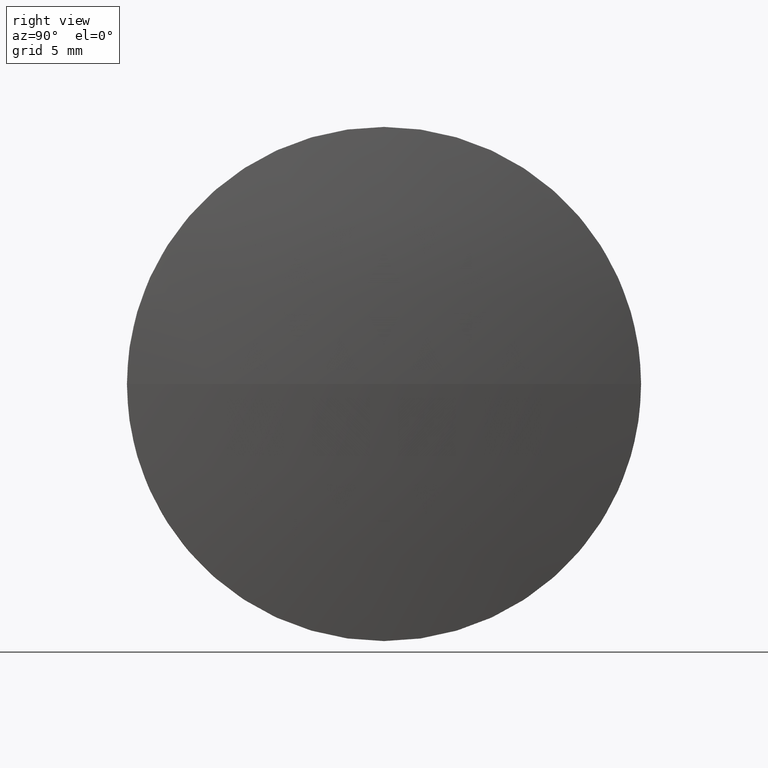
[diagram: clean part render]
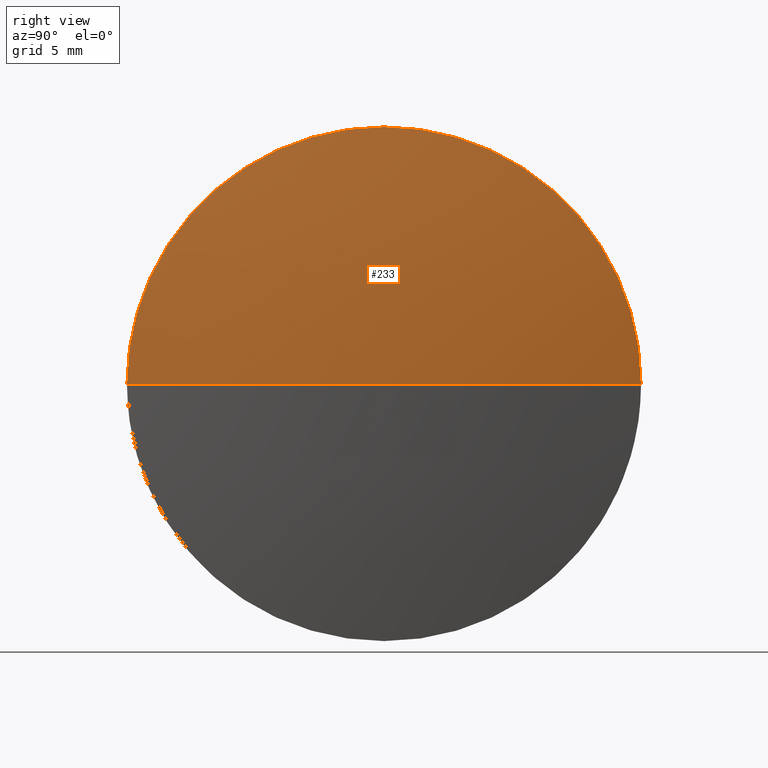
[diagram: same view with one face highlighted and labeled with its STEP entity id]
A machine part, right view. The second image highlights one B-rep face of the part: STEP entity #233.
In plain terms, the highlighted spherical surface has radius 85.3638 mm.
Its self-contained STEP definition (entity closure, byte-faithful):
#11 = SPHERICAL_SURFACE ( 'NONE', #228, 85.36384337824375700 ) ;
#14 = DIRECTION ( 'NONE',  ( 0.0000000000000000000, -1.224646799147353200E-016, 1.000000000000000000 ) ) ;
#17 = DIRECTION ( 'NONE',  ( 0.0000000000000000000, 0.0000000000000000000, 1.000000000000000000 ) ) ;
#29 = EDGE_CURVE ( 'NONE', #280, #303, #163, .T. ) ;
#39 = DIRECTION ( 'NONE',  ( 0.0000000000000000000, 0.0000000000000000000, -1.000000000000000000 ) ) ;
#42 = DIRECTION ( 'NONE',  ( -1.000000000000000000, 0.0000000000000000000, 0.0000000000000000000 ) ) ;
#45 = EDGE_CURVE ( 'NONE', #280, #235, #275, .T. ) ;
#49 = CARTESIAN_POINT ( 'NONE',  ( 87.48661080392687900, 48.63209213917348000, 0.0000000000000000000 ) ) ;
#64 = EDGE_CURVE ( 'NONE', #139, #303, #209, .T. ) ;
#77 = FACE_OUTER_BOUND ( 'NONE', #143, .T. ) ;
#85 = EDGE_CURVE ( 'NONE', #235, #139, #294, .T. ) ;
#89 = ORIENTED_EDGE ( 'NONE', *, *, #64, .F. ) ;
#92 = CARTESIAN_POINT ( 'NONE',  ( 3.073402634394560600, 48.63209213917353000, 0.0000000000000000000 ) ) ;
#102 = DIRECTION ( 'NONE',  ( 0.0000000000000000000, 0.0000000000000000000, 1.000000000000000000 ) ) ;
#104 = CARTESIAN_POINT ( 'NONE',  ( 3.073402634394560600, 48.63209213917353000, 0.0000000000000000000 ) ) ;
#118 = AXIS2_PLACEMENT_3D ( 'NONE', #92, #14, #297 ) ;
#124 = CARTESIAN_POINT ( 'NONE',  ( 87.48661080392689400, 35.92791791049834400, 0.0000000000000000000 ) ) ;
#137 = AXIS2_PLACEMENT_3D ( 'NONE', #271, #39, #42 ) ;
#139 = VERTEX_POINT ( 'NONE', #153 ) ;
#143 = EDGE_LOOP ( 'NONE', ( #325, #212, #89, #231 ) ) ;
#153 = CARTESIAN_POINT ( 'NONE',  ( 87.48661080392687900, 48.63209213917348000, 12.70417422867516100 ) ) ;
#163 = CIRCLE ( 'NONE', #118, 85.36384337824375700 ) ;
#166 = AXIS2_PLACEMENT_3D ( 'NONE', #222, #171, #17 ) ;
#171 = DIRECTION ( 'NONE',  ( -1.000000000000000000, -0.0000000000000000000, -0.0000000000000000000 ) ) ;
#176 = DIRECTION ( 'NONE',  ( 0.0000000000000000000, 0.0000000000000000000, 1.000000000000000000 ) ) ;
#201 = DIRECTION ( 'NONE',  ( 0.0000000000000000000, -1.000000000000000000, 0.0000000000000000000 ) ) ;
#209 = CIRCLE ( 'NONE', #166, 12.70417422867516100 ) ;
#212 = ORIENTED_EDGE ( 'NONE', *, *, #29, .T. ) ;
#222 = CARTESIAN_POINT ( 'NONE',  ( 87.48661080392687900, 48.63209213917348000, 0.0000000000000000000 ) ) ;
#228 = AXIS2_PLACEMENT_3D ( 'NONE', #104, #102, #201 ) ;
#231 = ORIENTED_EDGE ( 'NONE', *, *, #85, .F. ) ;
#233 = ADVANCED_FACE ( 'NONE', ( #77 ), #11, .T. ) ;
#235 = VERTEX_POINT ( 'NONE', #124 ) ;
#250 = CARTESIAN_POINT ( 'NONE',  ( 87.48661080392689400, 61.33626636784865100, 1.555812630495729100E-015 ) ) ;
#271 = CARTESIAN_POINT ( 'NONE',  ( 3.073402634394560600, 48.63209213917353000, 0.0000000000000000000 ) ) ;
#275 = CIRCLE ( 'NONE', #137, 85.36384337824375700 ) ;
#280 = VERTEX_POINT ( 'NONE', #298 ) ;
#294 = CIRCLE ( 'NONE', #320, 12.70417422867516100 ) ;
#297 = DIRECTION ( 'NONE',  ( 0.0000000000000000000, -1.000000000000000000, -1.224646799147353200E-016 ) ) ;
#298 = CARTESIAN_POINT ( 'NONE',  ( 88.43724601263832600, 48.63209213917352300, 0.0000000000000000000 ) ) ;
#300 = DIRECTION ( 'NONE',  ( -1.000000000000000000, -0.0000000000000000000, -0.0000000000000000000 ) ) ;
#303 = VERTEX_POINT ( 'NONE', #250 ) ;
#320 = AXIS2_PLACEMENT_3D ( 'NONE', #49, #300, #176 ) ;
#325 = ORIENTED_EDGE ( 'NONE', *, *, #45, .F. ) ;